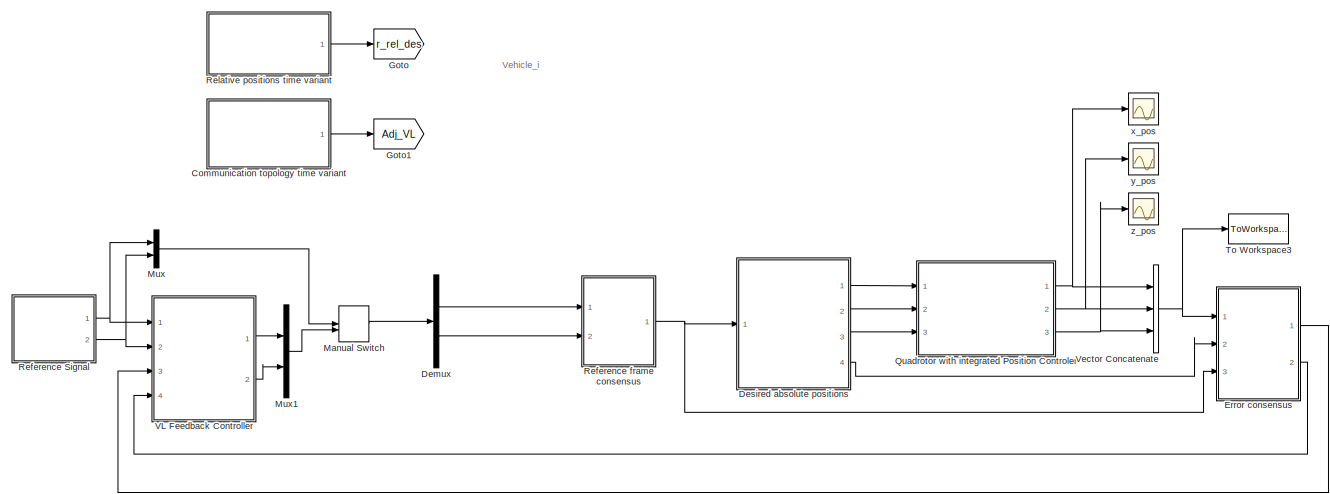
[diagram: root canvas - part 1/2, most of the canvas]
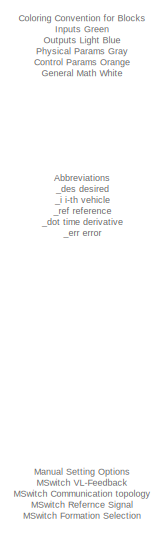
[diagram: root canvas - part 2/2, left side, full height]
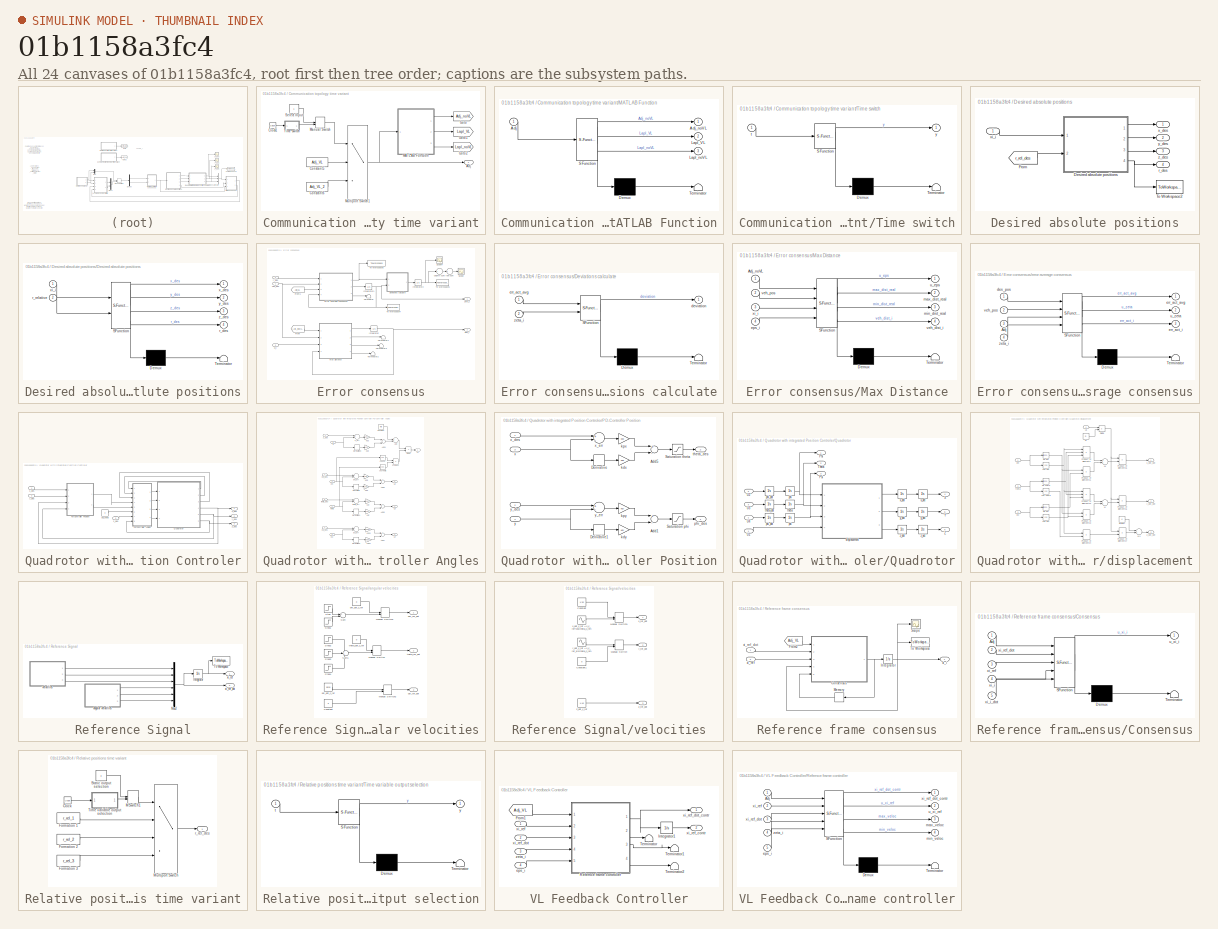
[diagram: thumbnail index - all 24 canvases of the model, root first then tree order]
MODEL slx_01b1158a3fc4
KIND model
CONFIG AbsTol = auto
CONFIG FixedStep = 0.01
CONFIG MaxStep = 0.01
CONFIG MinStep = auto
CONFIG RelTol = 1e-3
CONFIG SampleTimeConstraint = Unconstrained
CONFIG Solver = ode45
CONFIG SolverMode = Auto
CONFIG SolverName = ode45
CONFIG StartTime = 0.0
CONFIG StopTime = 100
BLOCK [SubSystem] Communication topology time variant
  Ports = [0, 1]
  RequestExecContextInheritance = off
  Variant = off
BLOCK [Outport] Communication topology time variant/Adj
  IconDisplay = Port number
BLOCK [Clock] Communication topology time variant/Clock1
BLOCK [Constant] Communication topology time variant/Constant5
  Value = Adj_VL
BLOCK [Constant] Communication topology time variant/Constant6
  Value = Adj_VL_2
BLOCK [Goto] Communication topology time variant/Goto
  GotoTag = Adj_noVL
  TagVisibility = global
BLOCK [Goto] Communication topology time variant/Goto1
  GotoTag = Lapl_VL
  TagVisibility = global
BLOCK [Goto] Communication topology time variant/Goto2
  GotoTag = Lapl_noVL
  TagVisibility = global
BLOCK [SubSystem] Communication topology time variant/MATLAB Function
  ErrorFcn = Stateflow.Translate.translate
  PermitHierarchicalResolution = ExplicitOnly
  Ports = [1, 3]
  RequestExecContextInheritance = off
  SFBlockType = MATLAB Function
  TreatAsAtomicUnit = on
  Variant = off
BLOCK [Demux] Communication topology time variant/MATLAB Function/ Demux 
  Outputs = 1
  Ports = [1, 1]
BLOCK [S-Function] Communication topology time variant/MATLAB Function/ SFunction 
  EnableBusSupport = on
  FunctionName = sf_sfun
  PortCounts = [1 4]
  Ports = [1, 4]
  SFunctionDeploymentMode = off
  Tag = Stateflow S-Function simulation 9
BLOCK [Terminator] Communication topology time variant/MATLAB Function/ Terminator 
BLOCK [Inport] Communication topology time variant/MATLAB Function/Adj
  IconDisplay = Port number
BLOCK [Outport] Communication topology time variant/MATLAB Function/Adj_noVL
  IconDisplay = Port number
BLOCK [Outport] Communication topology time variant/MATLAB Function/Lapl_VL
  IconDisplay = Port number
  Port = 2
BLOCK [Outport] Communication topology time variant/MATLAB Function/Lapl_noVL
  IconDisplay = Port number
  Port = 3
BLOCK [ManualSwitch] Communication topology time variant/Manual Switch
BLOCK [MultiPortSwitch] Communication topology time variant/Multiport Switch1
  InputSameDT = off
  Inputs = 2
  Ports = [3, 1]
  SaturateOnIntegerOverflow = off
BLOCK [Constant] Communication topology time variant/Select Input
BLOCK [SubSystem] Communication topology time variant/Time switch
  ErrorFcn = Stateflow.Translate.translate
  PermitHierarchicalResolution = ExplicitOnly
  Ports = [1, 1]
  RequestExecContextInheritance = off
  SFBlockType = MATLAB Function
  TreatAsAtomicUnit = on
  Variant = off
BLOCK [Demux] Communication topology time variant/Time switch/ Demux 
  Outputs = 1
  Ports = [1, 1]
BLOCK [S-Function] Communication topology time variant/Time switch/ SFunction 
  EnableBusSupport = on
  FunctionName = sf_sfun
  PortCounts = [1 2]
  Ports = [1, 2]
  SFunctionDeploymentMode = off
  Tag = Stateflow S-Function simulation 1
BLOCK [Terminator] Communication topology time variant/Time switch/ Terminator 
BLOCK [Inport] Communication topology time variant/Time switch/t
  IconDisplay = Port number
BLOCK [Outport] Communication topology time variant/Time switch/y
  IconDisplay = Port number
BLOCK [Demux] Demux
  DisplayOption = bar
  Outputs = 2
  Ports = [1, 2]
BLOCK [SubSystem] Desired absolute positions
  Ports = [1, 4]
  RequestExecContextInheritance = off
  Variant = off
BLOCK [SubSystem] Desired absolute positions/Desired absolute positions
  ErrorFcn = Stateflow.Translate.translate
  PermitHierarchicalResolution = ExplicitOnly
  Ports = [2, 4]
  RequestExecContextInheritance = off
  SFBlockType = MATLAB Function
  TreatAsAtomicUnit = on
  Variant = off
BLOCK [Demux] Desired absolute positions/Desired absolute positions/ Demux 
  Outputs = 1
  Ports = [1, 1]
BLOCK [S-Function] Desired absolute positions/Desired absolute positions/ SFunction 
  EnableBusSupport = on
  FunctionName = sf_sfun
  PortCounts = [2 5]
  Ports = [2, 5]
  SFunctionDeploymentMode = off
  Tag = Stateflow S-Function simulation 4
BLOCK [Terminator] Desired absolute positions/Desired absolute positions/ Terminator 
BLOCK [Outport] Desired absolute positions/Desired absolute positions/r_des
  IconDisplay = Port number
  Port = 4
BLOCK [Inport] Desired absolute positions/Desired absolute positions/r_relative
  IconDisplay = Port number
  Port = 2
BLOCK [Outport] Desired absolute positions/Desired absolute positions/x_des
  IconDisplay = Port number
BLOCK [Inport] Desired absolute positions/Desired absolute positions/xi_i
  IconDisplay = Port number
BLOCK [Outport] Desired absolute positions/Desired absolute positions/y_des
  IconDisplay = Port number
  Port = 2
BLOCK [Outport] Desired absolute positions/Desired absolute positions/z_des
  IconDisplay = Port number
  Port = 3
BLOCK [From] Desired absolute positions/From
  GotoTag = r_rel_des
  TagVisibility = global
BLOCK [ToWorkspace] Desired absolute positions/To Workspace2
  FixptAsFi = on
  MaxDataPoints = inf
  Ports = [1]
  SampleTime = -1
  Save2DSignal = 3-D array (concatenate along third dimension)
  SaveFormat = Timeseries
  VariableName = des_pos
BLOCK [Outport] Desired absolute positions/r_des
  IconDisplay = Port number
  Port = 4
BLOCK [Outport] Desired absolute positions/x_des
  IconDisplay = Port number
BLOCK [Inport] Desired absolute positions/xi_i
  IconDisplay = Port number
BLOCK [Outport] Desired absolute positions/y_des
  IconDisplay = Port number
  Port = 2
BLOCK [Outport] Desired absolute positions/z_des
  IconDisplay = Port number
  Port = 3
BLOCK [SubSystem] Error consensus
  Ports = [3, 2]
  RequestExecContextInheritance = off
  Variant = off
BLOCK [SubSystem] Error consensus/Deviations calculate
  ErrorFcn = Stateflow.Translate.translate
  PermitHierarchicalResolution = ExplicitOnly
  Ports = [2, 1]
  RequestExecContextInheritance = off
  SFBlockType = MATLAB Function
  TreatAsAtomicUnit = on
  Variant = off
BLOCK [Demux] Error consensus/Deviations calculate/ Demux 
  Outputs = 1
  Ports = [1, 1]
BLOCK [S-Function] Error consensus/Deviations calculate/ SFunction 
  EnableBusSupport = on
  FunctionName = sf_sfun
  PortCounts = [2 2]
  Ports = [2, 2]
  SFunctionDeploymentMode = off
  Tag = Stateflow S-Function simulation 7
BLOCK [Terminator] Error consensus/Deviations calculate/ Terminator 
BLOCK [Outport] Error consensus/Deviations calculate/deviation
  IconDisplay = Port number
BLOCK [Inport] Error consensus/Deviations calculate/err_act_avg
  IconDisplay = Port number
BLOCK [Inport] Error consensus/Deviations calculate/zeta_i
  IconDisplay = Port number
  Port = 2
BLOCK [From] Error consensus/From
  GotoTag = Adj_noVL
  TagVisibility = global
BLOCK [From] Error consensus/From1
  GotoTag = Adj_VL
  TagVisibility = global
BLOCK [Integrator] Error consensus/Integrator
  Ports = [1, 1]
BLOCK [Integrator] Error consensus/Integrator1
  Ports = [1, 1]
BLOCK [Integrator] Error consensus/Integrator2
  Ports = [1, 1]
BLOCK [SubSystem] Error consensus/Max Distance
  ErrorFcn = Stateflow.Translate.translate
  PermitHierarchicalResolution = ExplicitOnly
  Ports = [4, 4]
  RequestExecContextInheritance = off
  SFBlockType = MATLAB Function
  TreatAsAtomicUnit = on
  Variant = off
BLOCK [Demux] Error consensus/Max Distance/ Demux 
  Outputs = 1
  Ports = [1, 1]
BLOCK [S-Function] Error consensus/Max Distance/ SFunction 
  EnableBusSupport = on
  FunctionName = sf_sfun
  PortCounts = [4 5]
  Ports = [4, 5]
  SFunctionDeploymentMode = off
  Tag = Stateflow S-Function simulation 5
BLOCK [Terminator] Error consensus/Max Distance/ Terminator 
BLOCK [Inport] Error consensus/Max Distance/Adj_noVL
  IconDisplay = Port number
BLOCK [Inport] Error consensus/Max Distance/eps_i
  IconDisplay = Port number
  Port = 4
BLOCK [Outport] Error consensus/Max Distance/max_dist_real
  IconDisplay = Port number
  Port = 2
BLOCK [Outport] Error consensus/Max Distance/min_dist_real
  IconDisplay = Port number
  Port = 3
BLOCK [Outport] Error consensus/Max Distance/u_eps
  IconDisplay = Port number
BLOCK [Outport] Error consensus/Max Distance/veh_dist_i
  IconDisplay = Port number
  Port = 4
BLOCK [Inport] Error consensus/Max Distance/veh_pos
  IconDisplay = Port number
  Port = 2
BLOCK [Inport] Error consensus/Max Distance/xi_i
  IconDisplay = Port number
  Port = 3
BLOCK [Scope] Error consensus/Scope
  Ports = [1]
  ScopeSpecificationString = Simulink.scopes.TimeScopeBlockCfg('CurrentConfiguration', extmgr.ConfigurationSet(extmgr.Configuration('Core','General UI',true),extmgr.Configuration('Core','Source UI',true),extmgr.Configuration('Sources','WiredSimulink',true,'DataLoggingVariableName','ScopeData1'),extmgr.Configuration('Visuals','Time Domain',true,'SerializedDisplays',{struct('MinYLimReal','-6992.85907','MaxYLimReal','62935.7316'...<+1443ch>
BLOCK [Scope] Error consensus/Scope4
  Ports = [1]
  ScopeSpecificationString = Simulink.scopes.TimeScopeBlockCfg('CurrentConfiguration', extmgr.ConfigurationSet(extmgr.Configuration('Core','General UI',true),extmgr.Configuration('Core','Source UI',true),extmgr.Configuration('Sources','WiredSimulink',true,'DataLoggingVariableName','ScopeData4'),extmgr.Configuration('Visuals','Time Domain',true,'SerializedDisplays',{struct('MinYLimReal','-30.16941','MaxYLimReal','54.41269','YL...<+1910ch>
BLOCK [Terminator] Error consensus/Terminator
BLOCK [Terminator] Error consensus/Terminator1
BLOCK [Terminator] Error consensus/Terminator2
BLOCK [Terminator] Error consensus/Terminator3
BLOCK [ToWorkspace] Error consensus/To Workspace1
  FixptAsFi = on
  MaxDataPoints = 1
  Ports = [1]
  SampleTime = -1
  Save2DSignal = 3-D array (concatenate along third dimension)
  VariableName = guete
BLOCK [ToWorkspace] Error consensus/To Workspace4
  FixptAsFi = on
  MaxDataPoints = inf
  Ports = [1]
  SampleTime = -1
  Save2DSignal = 3-D array (concatenate along third dimension)
  SaveFormat = Timeseries
  VariableName = error_i_pos
BLOCK [ToWorkspace] Error consensus/To Workspace5
  FixptAsFi = on
  MaxDataPoints = inf
  Ports = [1]
  SampleTime = -1
  Save2DSignal = 3-D array (concatenate along third dimension)
  SaveFormat = Timeseries
  VariableName = error_true_avg
BLOCK [Sum] Error consensus/column sum
  InputSameDT = off
  Inputs = +
  OutDataTypeStr = Inherit: Inherit via internal rule
  Ports = [1, 1]
  SaturateOnIntegerOverflow = off
BLOCK [Outport] Error consensus/eps_i
  IconDisplay = Port number
  Port = 2
BLOCK [SubSystem] Error consensus/error average consensus
  ErrorFcn = Stateflow.Translate.translate
  PermitHierarchicalResolution = ExplicitOnly
  Ports = [4, 3]
  RequestExecContextInheritance = off
  SFBlockType = MATLAB Function
  TreatAsAtomicUnit = on
  Variant = off
BLOCK [Demux] Error consensus/error average consensus/ Demux 
  Outputs = 1
  Ports = [1, 1]
BLOCK [S-Function] Error consensus/error average consensus/ SFunction 
  EnableBusSupport = on
  FunctionName = sf_sfun
  PortCounts = [4 4]
  Ports = [4, 4]
  SFunctionDeploymentMode = off
  Tag = Stateflow S-Function simulation 6
BLOCK [Terminator] Error consensus/error average consensus/ Terminator 
BLOCK [Inport] Error consensus/error average consensus/Adj
  IconDisplay = Port number
  Port = 3
BLOCK [Inport] Error consensus/error average consensus/des_pos
  IconDisplay = Port number
BLOCK [Outport] Error consensus/error average consensus/err_act_avg
  IconDisplay = Port number
BLOCK [Outport] Error consensus/error average consensus/err_act_i
  IconDisplay = Port number
  Port = 3
BLOCK [Outport] Error consensus/error average consensus/u_zeta
  IconDisplay = Port number
  Port = 2
BLOCK [Inport] Error consensus/error average consensus/veh_pos
  IconDisplay = Port number
  Port = 2
BLOCK [Inport] Error consensus/error average consensus/zeta_i
  IconDisplay = Port number
  Port = 4
BLOCK [Inport] Error consensus/r_des
  IconDisplay = Port number
  Port = 2
BLOCK [Sum] Error consensus/row sum
  InputSameDT = off
  Inputs = +
  OutDataTypeStr = Inherit: Inherit via internal rule
  Ports = [1, 1]
  SaturateOnIntegerOverflow = off
BLOCK [Inport] Error consensus/veh_pos
  IconDisplay = Port number
BLOCK [Inport] Error consensus/xi_i
  IconDisplay = Port number
  Port = 3
BLOCK [Outport] Error consensus/zeta_i
  IconDisplay = Port number
BLOCK [Goto] Goto
  GotoTag = r_rel_des
  TagVisibility = global
BLOCK [Goto] Goto1
  GotoTag = Adj_VL
  TagVisibility = global
BLOCK [ManualSwitch] Manual Switch
BLOCK [Mux] Mux
  DisplayOption = bar
  Inputs = 2
  Ports = [2, 1]
BLOCK [Mux] Mux1
  DisplayOption = bar
  Inputs = 2
  Ports = [2, 1]
BLOCK [SubSystem] Quadrotor with integrated Position Controler
  Ports = [3, 3]
  RequestExecContextInheritance = off
  Variant = off
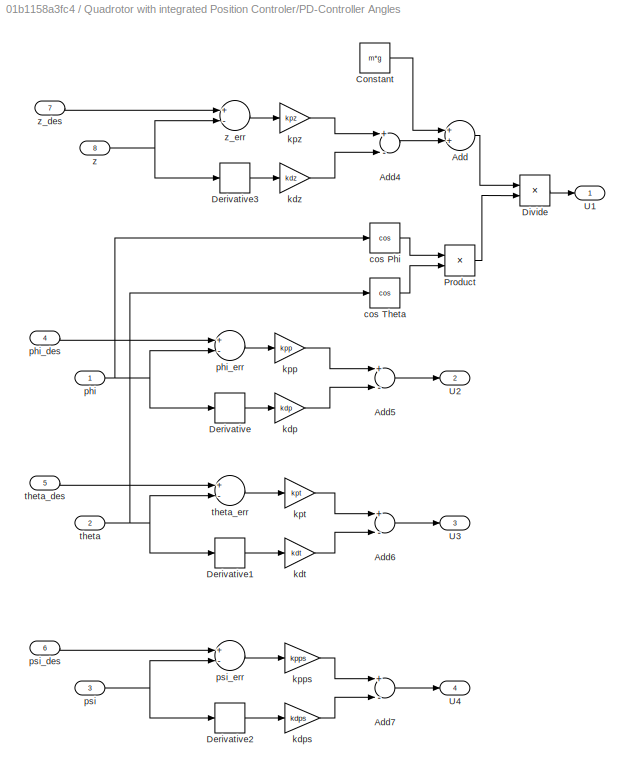
BLOCK [SubSystem] Quadrotor with integrated Position Controler/PD-Controller Angles
  Ports = [8, 4]
  RequestExecContextInheritance = off
  Variant = off
BLOCK [Sum] Quadrotor with integrated Position Controler/PD-Controller Angles/Add
  InputSameDT = off
  OutDataTypeStr = Inherit: Inherit via internal rule
  Ports = [2, 1]
  SaturateOnIntegerOverflow = off
BLOCK [Sum] Quadrotor with integrated Position Controler/PD-Controller Angles/Add4
  InputSameDT = off
  Inputs = +-
  OutDataTypeStr = Inherit: Inherit via internal rule
  Ports = [2, 1]
  SaturateOnIntegerOverflow = off
BLOCK [Sum] Quadrotor with integrated Position Controler/PD-Controller Angles/Add5
  InputSameDT = off
  Inputs = +-
  OutDataTypeStr = Inherit: Inherit via internal rule
  Ports = [2, 1]
  SaturateOnIntegerOverflow = off
BLOCK [Sum] Quadrotor with integrated Position Controler/PD-Controller Angles/Add6
  InputSameDT = off
  Inputs = +-
  OutDataTypeStr = Inherit: Inherit via internal rule
  Ports = [2, 1]
  SaturateOnIntegerOverflow = off
BLOCK [Sum] Quadrotor with integrated Position Controler/PD-Controller Angles/Add7
  InputSameDT = off
  Inputs = +-
  OutDataTypeStr = Inherit: Inherit via internal rule
  Ports = [2, 1]
  SaturateOnIntegerOverflow = off
BLOCK [Constant] Quadrotor with integrated Position Controler/PD-Controller Angles/Constant
  Value = m*g
BLOCK [Derivative] Quadrotor with integrated Position Controler/PD-Controller Angles/Derivative
BLOCK [Derivative] Quadrotor with integrated Position Controler/PD-Controller Angles/Derivative1
BLOCK [Derivative] Quadrotor with integrated Position Controler/PD-Controller Angles/Derivative2
BLOCK [Derivative] Quadrotor with integrated Position Controler/PD-Controller Angles/Derivative3
BLOCK [Product] Quadrotor with integrated Position Controler/PD-Controller Angles/Divide
  InputSameDT = off
  Inputs = */
  OutDataTypeStr = Inherit: Inherit via internal rule
  Ports = [2, 1]
  RndMeth = Floor
  SaturateOnIntegerOverflow = off
BLOCK [Product] Quadrotor with integrated Position Controler/PD-Controller Angles/Product
  InputSameDT = off
  OutDataTypeStr = Inherit: Inherit via internal rule
  Ports = [2, 1]
  SaturateOnIntegerOverflow = off
BLOCK [Outport] Quadrotor with integrated Position Controler/PD-Controller Angles/U1
  IconDisplay = Port number
BLOCK [Outport] Quadrotor with integrated Position Controler/PD-Controller Angles/U2
  IconDisplay = Port number
  Port = 2
BLOCK [Outport] Quadrotor with integrated Position Controler/PD-Controller Angles/U3
  IconDisplay = Port number
  Port = 3
BLOCK [Outport] Quadrotor with integrated Position Controler/PD-Controller Angles/U4
  IconDisplay = Port number
  Port = 4
BLOCK [Trigonometry] Quadrotor with integrated Position Controler/PD-Controller Angles/cos Phi
  Operator = cos
  Ports = [1, 1]
BLOCK [Trigonometry] Quadrotor with integrated Position Controler/PD-Controller Angles/cos Theta
  Operator = cos
  Ports = [1, 1]
BLOCK [Gain] Quadrotor with integrated Position Controler/PD-Controller Angles/kdp
  Gain = kdp
  OutDataTypeStr = Inherit: Inherit via internal rule
  ParamDataTypeStr = Inherit: Inherit via internal rule
  SaturateOnIntegerOverflow = off
BLOCK [Gain] Quadrotor with integrated Position Controler/PD-Controller Angles/kdps
  Gain = kdps
  OutDataTypeStr = Inherit: Inherit via internal rule
  ParamDataTypeStr = Inherit: Inherit via internal rule
  SaturateOnIntegerOverflow = off
BLOCK [Gain] Quadrotor with integrated Position Controler/PD-Controller Angles/kdt
  Gain = kdt
  OutDataTypeStr = Inherit: Inherit via internal rule
  ParamDataTypeStr = Inherit: Inherit via internal rule
  SaturateOnIntegerOverflow = off
BLOCK [Gain] Quadrotor with integrated Position Controler/PD-Controller Angles/kdz
  Gain = kdz
  OutDataTypeStr = Inherit: Inherit via internal rule
  ParamDataTypeStr = Inherit: Inherit via internal rule
  SaturateOnIntegerOverflow = off
BLOCK [Gain] Quadrotor with integrated Position Controler/PD-Controller Angles/kpp
  Gain = kpp
  OutDataTypeStr = Inherit: Inherit via internal rule
  ParamDataTypeStr = Inherit: Inherit via internal rule
  SaturateOnIntegerOverflow = off
BLOCK [Gain] Quadrotor with integrated Position Controler/PD-Controller Angles/kpps
  Gain = kpps
  OutDataTypeStr = Inherit: Inherit via internal rule
  ParamDataTypeStr = Inherit: Inherit via internal rule
  SaturateOnIntegerOverflow = off
BLOCK [Gain] Quadrotor with integrated Position Controler/PD-Controller Angles/kpt
  Gain = kpt
  OutDataTypeStr = Inherit: Inherit via internal rule
  ParamDataTypeStr = Inherit: Inherit via internal rule
  SaturateOnIntegerOverflow = off
BLOCK [Gain] Quadrotor with integrated Position Controler/PD-Controller Angles/kpz
  Gain = kpz
  OutDataTypeStr = Inherit: Inherit via internal rule
  ParamDataTypeStr = Inherit: Inherit via internal rule
  SaturateOnIntegerOverflow = off
BLOCK [Inport] Quadrotor with integrated Position Controler/PD-Controller Angles/phi
  IconDisplay = Port number
BLOCK [Inport] Quadrotor with integrated Position Controler/PD-Controller Angles/phi_des
  IconDisplay = Port number
  Port = 4
BLOCK [Sum] Quadrotor with integrated Position Controler/PD-Controller Angles/phi_err
  InputSameDT = off
  Inputs = +-
  OutDataTypeStr = Inherit: Inherit via internal rule
  Ports = [2, 1]
  SaturateOnIntegerOverflow = off
BLOCK [Inport] Quadrotor with integrated Position Controler/PD-Controller Angles/psi
  IconDisplay = Port number
  Port = 3
BLOCK [Inport] Quadrotor with integrated Position Controler/PD-Controller Angles/psi_des
  IconDisplay = Port number
  Port = 6
BLOCK [Sum] Quadrotor with integrated Position Controler/PD-Controller Angles/psi_err
  InputSameDT = off
  Inputs = +-
  OutDataTypeStr = Inherit: Inherit via internal rule
  Ports = [2, 1]
  SaturateOnIntegerOverflow = off
BLOCK [Inport] Quadrotor with integrated Position Controler/PD-Controller Angles/theta
  IconDisplay = Port number
  Port = 2
BLOCK [Inport] Quadrotor with integrated Position Controler/PD-Controller Angles/theta_des
  IconDisplay = Port number
  Port = 5
BLOCK [Sum] Quadrotor with integrated Position Controler/PD-Controller Angles/theta_err
  InputSameDT = off
  Inputs = +-
  OutDataTypeStr = Inherit: Inherit via internal rule
  Ports = [2, 1]
  SaturateOnIntegerOverflow = off
BLOCK [Inport] Quadrotor with integrated Position Controler/PD-Controller Angles/z
  IconDisplay = Port number
  Port = 8
BLOCK [Inport] Quadrotor with integrated Position Controler/PD-Controller Angles/z_des
  IconDisplay = Port number
  Port = 7
BLOCK [Sum] Quadrotor with integrated Position Controler/PD-Controller Angles/z_err
  InputSameDT = off
  Inputs = +-
  OutDataTypeStr = Inherit: Inherit via internal rule
  Ports = [2, 1]
  SaturateOnIntegerOverflow = off
BLOCK [SubSystem] Quadrotor with integrated Position Controler/PD-Controller Position
  Ports = [4, 2]
  RequestExecContextInheritance = off
  Variant = off
BLOCK [Sum] Quadrotor with integrated Position Controler/PD-Controller Position/Add1
  InputSameDT = off
  Inputs = +-
  OutDataTypeStr = Inherit: Inherit via internal rule
  Ports = [2, 1]
  SaturateOnIntegerOverflow = off
BLOCK [Sum] Quadrotor with integrated Position Controler/PD-Controller Position/Add5
  InputSameDT = off
  Inputs = +-
  OutDataTypeStr = Inherit: Inherit via internal rule
  Ports = [2, 1]
  SaturateOnIntegerOverflow = off
BLOCK [Derivative] Quadrotor with integrated Position Controler/PD-Controller Position/Derivative
BLOCK [Derivative] Quadrotor with integrated Position Controler/PD-Controller Position/Derivative1
BLOCK [Saturate] Quadrotor with integrated Position Controler/PD-Controller Position/Saturation phi
  InputPortMap = u0
  LowerLimit = -0.05
  Ports = [1, 1]
  UpperLimit = 0.05
  ZeroCross = off
BLOCK [Saturate] Quadrotor with integrated Position Controler/PD-Controller Position/Saturation theta
  InputPortMap = u0
  LowerLimit = -0.05
  Ports = [1, 1]
  UpperLimit = 0.05
  ZeroCross = off
BLOCK [Gain] Quadrotor with integrated Position Controler/PD-Controller Position/kdx
  Gain = kdx
  OutDataTypeStr = Inherit: Inherit via internal rule
  ParamDataTypeStr = Inherit: Inherit via internal rule
  SaturateOnIntegerOverflow = off
BLOCK [Gain] Quadrotor with integrated Position Controler/PD-Controller Position/kdy
  Gain = kdy
  OutDataTypeStr = Inherit: Inherit via internal rule
  ParamDataTypeStr = Inherit: Inherit via internal rule
  SaturateOnIntegerOverflow = off
BLOCK [Gain] Quadrotor with integrated Position Controler/PD-Controller Position/kpx
  Gain = kpx
  OutDataTypeStr = Inherit: Inherit via internal rule
  ParamDataTypeStr = Inherit: Inherit via internal rule
  SaturateOnIntegerOverflow = off
BLOCK [Gain] Quadrotor with integrated Position Controler/PD-Controller Position/kpy
  Gain = kpy
  OutDataTypeStr = Inherit: Inherit via internal rule
  ParamDataTypeStr = Inherit: Inherit via internal rule
  SaturateOnIntegerOverflow = off
BLOCK [Outport] Quadrotor with integrated Position Controler/PD-Controller Position/phi_des
  IconDisplay = Port number
BLOCK [Outport] Quadrotor with integrated Position Controler/PD-Controller Position/theta_des
  IconDisplay = Port number
  Port = 2
BLOCK [Inport] Quadrotor with integrated Position Controler/PD-Controller Position/x
  IconDisplay = Port number
  Port = 3
BLOCK [Inport] Quadrotor with integrated Position Controler/PD-Controller Position/x_des
  IconDisplay = Port number
BLOCK [Sum] Quadrotor with integrated Position Controler/PD-Controller Position/x_err
  InputSameDT = off
  Inputs = +-
  OutDataTypeStr = Inherit: Inherit via internal rule
  Ports = [2, 1]
  SaturateOnIntegerOverflow = off
BLOCK [Inport] Quadrotor with integrated Position Controler/PD-Controller Position/y
  IconDisplay = Port number
  Port = 4
BLOCK [Inport] Quadrotor with integrated Position Controler/PD-Controller Position/y_des
  IconDisplay = Port number
  Port = 2
BLOCK [Sum] Quadrotor with integrated Position Controler/PD-Controller Position/y_err
  InputSameDT = off
  Inputs = +-
  OutDataTypeStr = Inherit: Inherit via internal rule
  Ports = [2, 1]
  SaturateOnIntegerOverflow = off
BLOCK [SubSystem] Quadrotor with integrated Position Controler/Quadrotor
  Ports = [4, 6]
  RequestExecContextInheritance = off
  Variant = off
BLOCK [Outport] Quadrotor with integrated Position Controler/Quadrotor/Phi
  IconDisplay = Port number
BLOCK [Outport] Quadrotor with integrated Position Controler/Quadrotor/Psi
  IconDisplay = Port number
  Port = 3
BLOCK [Outport] Quadrotor with integrated Position Controler/Quadrotor/Theta
  IconDisplay = Port number
  Port = 2
BLOCK [Inport] Quadrotor with integrated Position Controler/Quadrotor/U1
  IconDisplay = Port number
BLOCK [Inport] Quadrotor with integrated Position Controler/Quadrotor/U2
  IconDisplay = Port number
  Port = 2
BLOCK [Inport] Quadrotor with integrated Position Controler/Quadrotor/U3
  IconDisplay = Port number
  Port = 3
BLOCK [Inport] Quadrotor with integrated Position Controler/Quadrotor/U4
  IconDisplay = Port number
  Port = 4
BLOCK [Outport] Quadrotor with integrated Position Controler/Quadrotor/X
  IconDisplay = Port number
  Port = 4
BLOCK [Outport] Quadrotor with integrated Position Controler/Quadrotor/Y
  IconDisplay = Port number
  Port = 5
BLOCK [Outport] Quadrotor with integrated Position Controler/Quadrotor/Z
  IconDisplay = Port number
  Port = 6
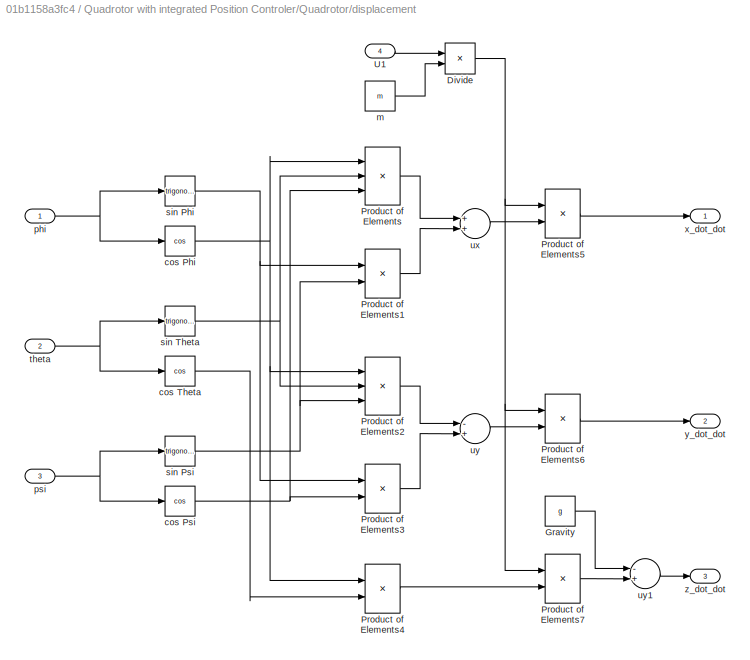
BLOCK [SubSystem] Quadrotor with integrated Position Controler/Quadrotor/displacement
  Ports = [4, 3]
  RequestExecContextInheritance = off
  Variant = off
BLOCK [Product] Quadrotor with integrated Position Controler/Quadrotor/displacement/Divide
  InputSameDT = off
  Inputs = */
  OutDataTypeStr = Inherit: Inherit via internal rule
  Ports = [2, 1]
  RndMeth = Floor
  SaturateOnIntegerOverflow = off
BLOCK [Constant] Quadrotor with integrated Position Controler/Quadrotor/displacement/Gravity
  Value = g
BLOCK [Product] Quadrotor with integrated Position Controler/Quadrotor/displacement/Product of Elements
  InputSameDT = off
  Inputs = 3
  OutDataTypeStr = Inherit: Inherit via internal rule
  Ports = [3, 1]
  RndMeth = Floor
  SaturateOnIntegerOverflow = off
BLOCK [Product] Quadrotor with integrated Position Controler/Quadrotor/displacement/Product of Elements1
  InputSameDT = off
  OutDataTypeStr = Inherit: Inherit via internal rule
  Ports = [2, 1]
  RndMeth = Floor
  SaturateOnIntegerOverflow = off
BLOCK [Product] Quadrotor with integrated Position Controler/Quadrotor/displacement/Product of Elements2
  InputSameDT = off
  Inputs = 3
  OutDataTypeStr = Inherit: Inherit via internal rule
  Ports = [3, 1]
  RndMeth = Floor
  SaturateOnIntegerOverflow = off
BLOCK [Product] Quadrotor with integrated Position Controler/Quadrotor/displacement/Product of Elements3
  InputSameDT = off
  OutDataTypeStr = Inherit: Inherit via internal rule
  Ports = [2, 1]
  RndMeth = Floor
  SaturateOnIntegerOverflow = off
BLOCK [Product] Quadrotor with integrated Position Controler/Quadrotor/displacement/Product of Elements4
  InputSameDT = off
  OutDataTypeStr = Inherit: Inherit via internal rule
  Ports = [2, 1]
  RndMeth = Floor
  SaturateOnIntegerOverflow = off
BLOCK [Product] Quadrotor with integrated Position Controler/Quadrotor/displacement/Product of Elements5
  InputSameDT = off
  OutDataTypeStr = Inherit: Inherit via internal rule
  Ports = [2, 1]
  RndMeth = Floor
  SaturateOnIntegerOverflow = off
BLOCK [Product] Quadrotor with integrated Position Controler/Quadrotor/displacement/Product of Elements6
  InputSameDT = off
  OutDataTypeStr = Inherit: Inherit via internal rule
  Ports = [2, 1]
  RndMeth = Floor
  SaturateOnIntegerOverflow = off
BLOCK [Product] Quadrotor with integrated Position Controler/Quadrotor/displacement/Product of Elements7
  InputSameDT = off
  OutDataTypeStr = Inherit: Inherit via internal rule
  Ports = [2, 1]
  RndMeth = Floor
  SaturateOnIntegerOverflow = off
BLOCK [Inport] Quadrotor with integrated Position Controler/Quadrotor/displacement/U1
  IconDisplay = Port number
  Port = 4
BLOCK [Trigonometry] Quadrotor with integrated Position Controler/Quadrotor/displacement/cos Phi
  Operator = cos
  Ports = [1, 1]
BLOCK [Trigonometry] Quadrotor with integrated Position Controler/Quadrotor/displacement/cos Psi
  Operator = cos
  Ports = [1, 1]
BLOCK [Trigonometry] Quadrotor with integrated Position Controler/Quadrotor/displacement/cos Theta
  Operator = cos
  Ports = [1, 1]
BLOCK [Constant] Quadrotor with integrated Position Controler/Quadrotor/displacement/m
  Value = m
BLOCK [Inport] Quadrotor with integrated Position Controler/Quadrotor/displacement/phi
  IconDisplay = Port number
BLOCK [Inport] Quadrotor with integrated Position Controler/Quadrotor/displacement/psi
  IconDisplay = Port number
  Port = 3
BLOCK [Trigonometry] Quadrotor with integrated Position Controler/Quadrotor/displacement/sin Phi
  Ports = [1, 1]
BLOCK [Trigonometry] Quadrotor with integrated Position Controler/Quadrotor/displacement/sin Psi
  Ports = [1, 1]
BLOCK [Trigonometry] Quadrotor with integrated Position Controler/Quadrotor/displacement/sin Theta
  Ports = [1, 1]
BLOCK [Inport] Quadrotor with integrated Position Controler/Quadrotor/displacement/theta
  IconDisplay = Port number
  Port = 2
BLOCK [Sum] Quadrotor with integrated Position Controler/Quadrotor/displacement/ux
  InputSameDT = off
  OutDataTypeStr = Inherit: Inherit via internal rule
  Ports = [2, 1]
  SaturateOnIntegerOverflow = off
BLOCK [Sum] Quadrotor with integrated Position Controler/Quadrotor/displacement/uy
  InputSameDT = off
  Inputs = -+
  OutDataTypeStr = Inherit: Inherit via internal rule
  Ports = [2, 1]
  SaturateOnIntegerOverflow = off
BLOCK [Sum] Quadrotor with integrated Position Controler/Quadrotor/displacement/uy1
  InputSameDT = off
  Inputs = -+
  OutDataTypeStr = Inherit: Inherit via internal rule
  Ports = [2, 1]
  SaturateOnIntegerOverflow = off
BLOCK [Outport] Quadrotor with integrated Position Controler/Quadrotor/displacement/x_dot_dot
  IconDisplay = Port number
BLOCK [Outport] Quadrotor with integrated Position Controler/Quadrotor/displacement/y_dot_dot
  IconDisplay = Port number
  Port = 2
BLOCK [Outport] Quadrotor with integrated Position Controler/Quadrotor/displacement/z_dot_dot
  IconDisplay = Port number
  Port = 3
BLOCK [Integrator] Quadrotor with integrated Position Controler/Quadrotor/phi
  Ports = [1, 1]
  ZeroCross = off
BLOCK [Integrator] Quadrotor with integrated Position Controler/Quadrotor/phi_dot
  Ports = [1, 1]
BLOCK [Integrator] Quadrotor with integrated Position Controler/Quadrotor/psi
  Ports = [1, 1]
  ZeroCross = off
BLOCK [Integrator] Quadrotor with integrated Position Controler/Quadrotor/psi_dot
  Ports = [1, 1]
  ZeroCross = off
BLOCK [Integrator] Quadrotor with integrated Position Controler/Quadrotor/theta
  Ports = [1, 1]
  ZeroCross = off
BLOCK [Integrator] Quadrotor with integrated Position Controler/Quadrotor/theta_dot
  Ports = [1, 1]
  ZeroCross = off
BLOCK [Integrator] Quadrotor with integrated Position Controler/Quadrotor/x_act
  Ports = [1, 1]
BLOCK [Integrator] Quadrotor with integrated Position Controler/Quadrotor/x_dot
  Ports = [1, 1]
BLOCK [Integrator] Quadrotor with integrated Position Controler/Quadrotor/y_act
  Ports = [1, 1]
BLOCK [Integrator] Quadrotor with integrated Position Controler/Quadrotor/y_dot
  Ports = [1, 1]
BLOCK [Integrator] Quadrotor with integrated Position Controler/Quadrotor/z_act
  Ports = [1, 1]
BLOCK [Integrator] Quadrotor with integrated Position Controler/Quadrotor/z_dot
  Ports = [1, 1]
BLOCK [Constant] Quadrotor with integrated Position Controler/psi_fixed
  Value = 0
BLOCK [Inport] Quadrotor with integrated Position Controler/x_des
  IconDisplay = Port number
BLOCK [Outport] Quadrotor with integrated Position Controler/x_pos
  IconDisplay = Port number
BLOCK [Inport] Quadrotor with integrated Position Controler/y_des
  IconDisplay = Port number
  Port = 2
BLOCK [Outport] Quadrotor with integrated Position Controler/y_pos
  IconDisplay = Port number
  Port = 2
BLOCK [Inport] Quadrotor with integrated Position Controler/z_des
  IconDisplay = Port number
  Port = 3
BLOCK [Outport] Quadrotor with integrated Position Controler/z_pos
  IconDisplay = Port number
  Port = 3
BLOCK [SubSystem] Reference Signal
  Ports = [0, 2]
  RequestExecContextInheritance = off
  Variant = off
BLOCK [Integrator] Reference Signal/Integrator
  InitialCondition = [0;0;0;0;0;0]
  Ports = [1, 1]
BLOCK [Mux] Reference Signal/Mux2
  DisplayOption = bar
  Inputs = 6
  Ports = [6, 1]
BLOCK [ToWorkspace] Reference Signal/To Workspace
  FixptAsFi = on
  MaxDataPoints = inf
  Ports = [1]
  SampleTime = -1
  Save2DSignal = 3-D array (concatenate along third dimension)
  SaveFormat = Timeseries
  VariableName = xi_ref
BLOCK [SubSystem] Reference Signal/angular velocities
  Ports = [0, 3]
  RequestExecContextInheritance = off
  Variant = off
BLOCK [Constant] Reference Signal/angular velocities/Constant
  Value = 0
BLOCK [ManualSwitch] Reference Signal/angular velocities/Manual Switch
BLOCK [ManualSwitch] Reference Signal/angular velocities/Manual Switch1
  CurrentSetting = 0
BLOCK [ManualSwitch] Reference Signal/angular velocities/Manual Switch2
  CurrentSetting = 0
BLOCK [Step] Reference Signal/angular velocities/Step
  After = pi/10
  SampleTime = 0
  Time = 20
BLOCK [Step] Reference Signal/angular velocities/Step1
  After = pi/10
  SampleTime = 0
  Time = 40
BLOCK [Step] Reference Signal/angular velocities/Step2
  After = pi/30
  SampleTime = 0
  Time = 10
BLOCK [Step] Reference Signal/angular velocities/Step3
  After = pi/30*2
  SampleTime = 0
  Time = 15
BLOCK [Step] Reference Signal/angular velocities/Step4
  After = pi/30
  SampleTime = 0
  Time = 20
BLOCK [Sum] Reference Signal/angular velocities/Sum
  IconShape = round
  InputSameDT = off
  Inputs = +-
  OutDataTypeStr = Inherit: Inherit via internal rule
  Ports = [2, 1]
  SaturateOnIntegerOverflow = off
BLOCK [Sum] Reference Signal/angular velocities/Sum1
  IconShape = round
  InputSameDT = off
  Inputs = +-+
  OutDataTypeStr = Inherit: Inherit via internal rule
  Ports = [3, 1]
  SaturateOnIntegerOverflow = off
BLOCK [Constant] Reference Signal/angular velocities/phi_dot_c_ref
  Value = 0
BLOCK [Outport] Reference Signal/angular velocities/phi_ref_dot
  IconDisplay = Port number
BLOCK [Constant] Reference Signal/angular velocities/psi_dot_c_ref
  Value = pi/50
BLOCK [Outport] Reference Signal/angular velocities/psi_ref_dot
  IconDisplay = Port number
  Port = 3
BLOCK [Constant] Reference Signal/angular velocities/theta_dot_c_ref
  Value = 0
BLOCK [Outport] Reference Signal/angular velocities/theta_ref_dot
  IconDisplay = Port number
  Port = 2
BLOCK [SubSystem] Reference Signal/velocities
  Ports = [0, 3]
  RequestExecContextInheritance = off
  Variant = off
BLOCK [Constant] Reference Signal/velocities/Constant
  Value = 1/30
BLOCK [Constant] Reference Signal/velocities/Constant1
  Value = 0
BLOCK [ManualSwitch] Reference Signal/velocities/Manual Switch
  CurrentSetting = 0
BLOCK [ManualSwitch] Reference Signal/velocities/Manual Switch1
BLOCK [Sin] Reference Signal/velocities/x_dot_c_ref = v_c_ref*cos(theta_c_ref)
  Amplitude = 9*pi/500
  Frequency = pi/50
  Phase = pi/2
  Ports = [0, 1]
  SampleTime = 0
BLOCK [Outport] Reference Signal/velocities/x_ref_dot
  IconDisplay = Port number
BLOCK [Sin] Reference Signal/velocities/y_dot_c_ref = v_c_ref_sin(thete_c_ref)
  Amplitude = 9*pi/500
  Frequency = pi/50
  Ports = [0, 1]
  SampleTime = 0
BLOCK [Outport] Reference Signal/velocities/y_ref_dot
  IconDisplay = Port number
  Port = 2
BLOCK [Constant] Reference Signal/velocities/z_dot_c_ref
  Value = 1/40
BLOCK [Outport] Reference Signal/velocities/z_ref_dot
  IconDisplay = Port number
  Port = 3
BLOCK [Outport] Reference Signal/xi_ref
  IconDisplay = Port number
BLOCK [Outport] Reference Signal/xi_ref_dot
  IconDisplay = Port number
  Port = 2
BLOCK [SubSystem] Reference frame consensus
  Ports = [2, 1]
  RequestExecContextInheritance = off
  Variant = off
BLOCK [SubSystem] Reference frame consensus/Consensus
  ErrorFcn = Stateflow.Translate.translate
  MinAlgLoopOccurrences = on
  PermitHierarchicalResolution = ExplicitOnly
  Ports = [5, 1]
  RequestExecContextInheritance = off
  SFBlockType = MATLAB Function
  TreatAsAtomicUnit = on
  Variant = off
BLOCK [Demux] Reference frame consensus/Consensus/ Demux 
  Outputs = 1
  Ports = [1, 1]
BLOCK [S-Function] Reference frame consensus/Consensus/ SFunction 
  EnableBusSupport = on
  FunctionName = sf_sfun
  PortCounts = [5 2]
  Ports = [5, 2]
  SFunctionDeploymentMode = off
  Tag = Stateflow S-Function simulation 2
BLOCK [Terminator] Reference frame consensus/Consensus/ Terminator 
BLOCK [Inport] Reference frame consensus/Consensus/Adj
  IconDisplay = Port number
BLOCK [Outport] Reference frame consensus/Consensus/u_xi_i
  IconDisplay = Port number
BLOCK [Inport] Reference frame consensus/Consensus/xi_i
  IconDisplay = Port number
  Port = 4
BLOCK [Inport] Reference frame consensus/Consensus/xi_i_dot
  IconDisplay = Port number
  Port = 5
BLOCK [Inport] Reference frame consensus/Consensus/xi_ref
  IconDisplay = Port number
  Port = 3
BLOCK [Inport] Reference frame consensus/Consensus/xi_ref_dot
  IconDisplay = Port number
  Port = 2
BLOCK [From] Reference frame consensus/From2
  GotoTag = Adj_VL
  TagVisibility = global
BLOCK [Integrator] Reference frame consensus/Integrator
  InitialCondition = xi_init
  Ports = [1, 1]
BLOCK [Memory] Reference frame consensus/Memory
BLOCK [Scope] Reference frame consensus/Scope
  Ports = [1]
  ScopeSpecificationString = C++SS(StrPVP('SaveName','ScopeData1'),StrPVP('LimitDataPoints','on'),StrPVP('DataFormat','Array'),StrPVP('Decimation','1'),StrPVP('BlockParamSampleInput','off'))
BLOCK [ToWorkspace] Reference frame consensus/To Workspace
  FixptAsFi = on
  MaxDataPoints = inf
  Ports = [1]
  SampleTime = -1
  Save2DSignal = 3-D array (concatenate along third dimension)
  SaveFormat = Timeseries
  VariableName = xi_i
BLOCK [Outport] Reference frame consensus/xi_i
  IconDisplay = Port number
BLOCK [Inport] Reference frame consensus/xi_ref
  IconDisplay = Port number
  Port = 2
BLOCK [Inport] Reference frame consensus/xi_ref_dot
  IconDisplay = Port number
BLOCK [SubSystem] Relative positions time variant
  Ports = [0, 1]
  RequestExecContextInheritance = off
  Variant = off
BLOCK [Clock] Relative positions time variant/Clock
BLOCK [Constant] Relative positions time variant/Formation 1
  Value = r_rel_1
BLOCK [Constant] Relative positions time variant/Formation 2
  Value = r_rel_2
BLOCK [Constant] Relative positions time variant/Formation 3
  Value = r_rel_3
BLOCK [ManualSwitch] Relative positions time variant/MSwitch1
BLOCK [MultiPortSwitch] Relative positions time variant/Multiport Switch
  InputSameDT = off
  Ports = [4, 1]
  SaturateOnIntegerOverflow = off
BLOCK [Constant] Relative positions time variant/Static output selection
  Value = 3
BLOCK [SubSystem] Relative positions time variant/Time variable output selection
  ErrorFcn = Stateflow.Translate.translate
  PermitHierarchicalResolution = ExplicitOnly
  Ports = [1, 1]
  RequestExecContextInheritance = off
  SFBlockType = MATLAB Function
  TreatAsAtomicUnit = on
  Variant = off
BLOCK [Demux] Relative positions time variant/Time variable output selection/ Demux 
  Outputs = 1
  Ports = [1, 1]
BLOCK [S-Function] Relative positions time variant/Time variable output selection/ SFunction 
  EnableBusSupport = on
  FunctionName = sf_sfun
  PortCounts = [1 2]
  Ports = [1, 2]
  SFunctionDeploymentMode = off
  Tag = Stateflow S-Function simulation 3
BLOCK [Terminator] Relative positions time variant/Time variable output selection/ Terminator 
BLOCK [Inport] Relative positions time variant/Time variable output selection/t
  IconDisplay = Port number
BLOCK [Outport] Relative positions time variant/Time variable output selection/y
  IconDisplay = Port number
BLOCK [Outport] Relative positions time variant/r_rel_des
  IconDisplay = Port number
BLOCK [ToWorkspace] To Workspace3
  FixptAsFi = on
  MaxDataPoints = inf
  Ports = [1]
  SampleTime = -1
  Save2DSignal = 3-D array (concatenate along third dimension)
  SaveFormat = Timeseries
  VariableName = vehicle_pos
BLOCK [SubSystem] VL Feedback Controller
  Ports = [4, 2]
  RequestExecContextInheritance = off
  Variant = off
BLOCK [From] VL Feedback Controller/From1
  GotoTag = Adj_VL
  TagVisibility = global
BLOCK [Integrator] VL Feedback Controller/Integrator1
  Ports = [1, 1]
BLOCK [SubSystem] VL Feedback Controller/Refernce frame controller
  ErrorFcn = Stateflow.Translate.translate
  PermitHierarchicalResolution = ExplicitOnly
  Ports = [5, 4]
  RequestExecContextInheritance = off
  SFBlockType = MATLAB Function
  TreatAsAtomicUnit = on
  Variant = off
BLOCK [Demux] VL Feedback Controller/Refernce frame controller/ Demux 
  Outputs = 1
  Ports = [1, 1]
BLOCK [S-Function] VL Feedback Controller/Refernce frame controller/ SFunction 
  EnableBusSupport = on
  FunctionName = sf_sfun
  PortCounts = [5 5]
  Ports = [5, 5]
  SFunctionDeploymentMode = off
  Tag = Stateflow S-Function simulation 8
BLOCK [Terminator] VL Feedback Controller/Refernce frame controller/ Terminator 
BLOCK [Inport] VL Feedback Controller/Refernce frame controller/Adj
  IconDisplay = Port number
BLOCK [Inport] VL Feedback Controller/Refernce frame controller/eps_i
  IconDisplay = Port number
  Port = 5
BLOCK [Outport] VL Feedback Controller/Refernce frame controller/max_veloc
  IconDisplay = Port number
  Port = 3
BLOCK [Outport] VL Feedback Controller/Refernce frame controller/min_veloc
  IconDisplay = Port number
  Port = 4
BLOCK [Outport] VL Feedback Controller/Refernce frame controller/u_xi_ref
  IconDisplay = Port number
  Port = 2
BLOCK [Inport] VL Feedback Controller/Refernce frame controller/xi_ref
  IconDisplay = Port number
  Port = 2
BLOCK [Inport] VL Feedback Controller/Refernce frame controller/xi_ref_dot
  IconDisplay = Port number
  Port = 3
BLOCK [Outport] VL Feedback Controller/Refernce frame controller/xi_ref_dot_contr
  IconDisplay = Port number
BLOCK [Inport] VL Feedback Controller/Refernce frame controller/zeta_i
  IconDisplay = Port number
  Port = 4
BLOCK [Terminator] VL Feedback Controller/Terminator
BLOCK [Terminator] VL Feedback Controller/Terminator1
BLOCK [Terminator] VL Feedback Controller/Terminator2
BLOCK [Inport] VL Feedback Controller/eps_i
  IconDisplay = Port number
  Port = 4
BLOCK [Inport] VL Feedback Controller/xi_ref
  IconDisplay = Port number
BLOCK [Outport] VL Feedback Controller/xi_ref_contr
  IconDisplay = Port number
  Port = 2
BLOCK [Inport] VL Feedback Controller/xi_ref_dot
  IconDisplay = Port number
  Port = 2
BLOCK [Outport] VL Feedback Controller/xi_ref_dot_contr
  IconDisplay = Port number
BLOCK [Inport] VL Feedback Controller/zeta_i
  IconDisplay = Port number
  Port = 3
BLOCK [Concatenate] Vector Concatenate
  Mode = Multidimensional array
  NumInputs = 3
  Ports = [3, 1]
BLOCK [Scope] x_pos
  Ports = [1]
  ScopeSpecificationString = Simulink.scopes.TimeScopeBlockCfg('CurrentConfiguration', extmgr.ConfigurationSet(extmgr.Configuration('Core','General UI',true),extmgr.Configuration('Core','Source UI',true),extmgr.Configuration('Sources','WiredSimulink',true,'DataLoggingVariableName','ScopeData3','DataLoggingSaveFormat','StructureWithTime','DataLoggingDecimation','1','DataLoggingDecimateData',true),extmgr.Configuration('Visuals'...<+1763ch>
BLOCK [Scope] y_pos
  Ports = [1]
  ScopeSpecificationString = Simulink.scopes.TimeScopeBlockCfg('CurrentConfiguration', extmgr.ConfigurationSet(extmgr.Configuration('Core','General UI',true),extmgr.Configuration('Core','Source UI',true),extmgr.Configuration('Sources','WiredSimulink',true,'DataLoggingVariableName','ScopeData5','DataLoggingSaveFormat','StructureWithTime','DataLoggingLimitDataPoints',true,'DataLoggingDecimation','1','DataLoggingDecimateData',tr...<+1797ch>
BLOCK [Scope] z_pos
  Ports = [1]
  ScopeSpecificationString = Simulink.scopes.TimeScopeBlockCfg('CurrentConfiguration', extmgr.ConfigurationSet(extmgr.Configuration('Core','General UI',true),extmgr.Configuration('Core','Source UI',true),extmgr.Configuration('Sources','WiredSimulink',true,'DataLoggingVariableName','ScopeData4','DataLoggingSaveFormat','StructureWithTime','DataLoggingDecimation','1','DataLoggingDecimateData',true),extmgr.Configuration('Visuals'...<+1763ch>
ANNOTATION (root): Abbreviations _des desired _i i-th vehicle _ref reference _dot time derivative _err error _pos position _act actual _contr controlled veh vehicle Adj Adjacency matrix Lapl Laplacian matrix x x-position y y-position z z-position xi reference frame VL Virtual Leader r [x y z] - position _rel relative in virtual frame
ANNOTATION (root): Coloring Convention for Blocks Inputs Green Outputs Light Blue Physical Params Gray Control Params Orange General Math White Subsystems White Integrators White Goto / From Yellow
ANNOTATION (root): Manual Setting Options MSwitch VL-Feedback MSwitch Communication topology MSwitch Refernce Signal MSwitch Formation Selection
ANNOTATION (root): Vehicle_i
LINE Communication topology time variant/Clock1:1 -> Communication topology time variant/Time switch:1
LINE Communication topology time variant/Constant5:1 -> Communication topology time variant/Multiport Switch1:2
LINE Communication topology time variant/Constant6:1 -> Communication topology time variant/Multiport Switch1:3
LINE Communication topology time variant/MATLAB Function:1 -> Communication topology time variant/Goto:1
LINE Communication topology time variant/MATLAB Function:2 -> Communication topology time variant/Goto1:1
LINE Communication topology time variant/MATLAB Function:3 -> Communication topology time variant/Goto2:1
LINE Communication topology time variant/Manual Switch:1 -> Communication topology time variant/Multiport Switch1:1
NET Communication topology time variant/Multiport Switch1:1 -> Communication topology time variant/Adj:1, Communication topology time variant/MATLAB Function:1
LINE Communication topology time variant/Select Input:1 -> Communication topology time variant/Manual Switch:1
LINE Communication topology time variant/Time switch:1 -> Communication topology time variant/Manual Switch:2
LINE Communication topology time variant:1 -> Goto1:1
LINE Demux:1 -> Reference frame consensus:1
LINE Demux:2 -> Reference frame consensus:2
LINE Desired absolute positions/Desired absolute positions:1 -> Desired absolute positions/x_des:1
LINE Desired absolute positions/Desired absolute positions:2 -> Desired absolute positions/y_des:1
LINE Desired absolute positions/Desired absolute positions:3 -> Desired absolute positions/z_des:1
NET Desired absolute positions/Desired absolute positions:4 -> Desired absolute positions/To Workspace2:1, Desired absolute positions/r_des:1
LINE Desired absolute positions/From:1 -> Desired absolute positions/Desired absolute positions:2
LINE Desired absolute positions/xi_i:1 -> Desired absolute positions/Desired absolute positions:1
LINE Desired absolute positions:1 -> Quadrotor with integrated Position Controler:1
LINE Desired absolute positions:2 -> Quadrotor with integrated Position Controler:2
LINE Desired absolute positions:3 -> Quadrotor with integrated Position Controler:3
LINE Desired absolute positions:4 -> Error consensus:2
LINE Error consensus/Deviations calculate:1 -> Error consensus/Integrator2:1
LINE Error consensus/From1:1 -> Error consensus/error average consensus:3
LINE Error consensus/From:1 -> Error consensus/Max Distance:1
NET Error consensus/Integrator1:1 -> Error consensus/Deviations calculate:2, Error consensus/To Workspace4:1, Error consensus/error average consensus:4, Error consensus/zeta_i:1
NET Error consensus/Integrator2:1 -> Error consensus/Scope4:1, Error consensus/To Workspace1:1, Error consensus/column sum:1
NET Error consensus/Integrator:1 -> Error consensus/Max Distance:4, Error consensus/eps_i:1
LINE Error consensus/Max Distance:1 -> Error consensus/Integrator:1
LINE Error consensus/Max Distance:2 -> Error consensus/Terminator1:1
LINE Error consensus/Max Distance:3 -> Error consensus/Terminator3:1
LINE Error consensus/Max Distance:4 -> Error consensus/Terminator2:1
LINE Error consensus/column sum:1 -> Error consensus/row sum:1
NET Error consensus/error average consensus:1 -> Error consensus/Deviations calculate:1, Error consensus/To Workspace5:1
LINE Error consensus/error average consensus:2 -> Error consensus/Integrator1:1
LINE Error consensus/error average consensus:3 -> Error consensus/Terminator:1
LINE Error consensus/r_des:1 -> Error consensus/error average consensus:1
LINE Error consensus/row sum:1 -> Error consensus/Scope:1
NET Error consensus/veh_pos:1 -> Error consensus/Max Distance:2, Error consensus/error average consensus:2
LINE Error consensus/xi_i:1 -> Error consensus/Max Distance:3
LINE Error consensus:1 -> VL Feedback Controller:3
LINE Error consensus:2 -> VL Feedback Controller:4
LINE Manual Switch:1 -> Demux:1
LINE Mux1:1 -> Manual Switch:2
LINE Mux:1 -> Manual Switch:1
LINE Quadrotor with integrated Position Controler/PD-Controller Angles/Add4:1 -> Quadrotor with integrated Position Controler/PD-Controller Angles/Add:2
LINE Quadrotor with integrated Position Controler/PD-Controller Angles/Add5:1 -> Quadrotor with integrated Position Controler/PD-Controller Angles/U2:1
LINE Quadrotor with integrated Position Controler/PD-Controller Angles/Add6:1 -> Quadrotor with integrated Position Controler/PD-Controller Angles/U3:1
LINE Quadrotor with integrated Position Controler/PD-Controller Angles/Add7:1 -> Quadrotor with integrated Position Controler/PD-Controller Angles/U4:1
LINE Quadrotor with integrated Position Controler/PD-Controller Angles/Add:1 -> Quadrotor with integrated Position Controler/PD-Controller Angles/Divide:1
LINE Quadrotor with integrated Position Controler/PD-Controller Angles/Constant:1 -> Quadrotor with integrated Position Controler/PD-Controller Angles/Add:1
LINE Quadrotor with integrated Position Controler/PD-Controller Angles/Derivative1:1 -> Quadrotor with integrated Position Controler/PD-Controller Angles/kdt:1
LINE Quadrotor with integrated Position Controler/PD-Controller Angles/Derivative2:1 -> Quadrotor with integrated Position Controler/PD-Controller Angles/kdps:1
LINE Quadrotor with integrated Position Controler/PD-Controller Angles/Derivative3:1 -> Quadrotor with integrated Position Controler/PD-Controller Angles/kdz:1
LINE Quadrotor with integrated Position Controler/PD-Controller Angles/Derivative:1 -> Quadrotor with integrated Position Controler/PD-Controller Angles/kdp:1
LINE Quadrotor with integrated Position Controler/PD-Controller Angles/Divide:1 -> Quadrotor with integrated Position Controler/PD-Controller Angles/U1:1
LINE Quadrotor with integrated Position Controler/PD-Controller Angles/Product:1 -> Quadrotor with integrated Position Controler/PD-Controller Angles/Divide:2
LINE Quadrotor with integrated Position Controler/PD-Controller Angles/cos Phi:1 -> Quadrotor with integrated Position Controler/PD-Controller Angles/Product:1
LINE Quadrotor with integrated Position Controler/PD-Controller Angles/cos Theta:1 -> Quadrotor with integrated Position Controler/PD-Controller Angles/Product:2
LINE Quadrotor with integrated Position Controler/PD-Controller Angles/kdp:1 -> Quadrotor with integrated Position Controler/PD-Controller Angles/Add5:2
LINE Quadrotor with integrated Position Controler/PD-Controller Angles/kdps:1 -> Quadrotor with integrated Position Controler/PD-Controller Angles/Add7:2
LINE Quadrotor with integrated Position Controler/PD-Controller Angles/kdt:1 -> Quadrotor with integrated Position Controler/PD-Controller Angles/Add6:2
LINE Quadrotor with integrated Position Controler/PD-Controller Angles/kdz:1 -> Quadrotor with integrated Position Controler/PD-Controller Angles/Add4:2
LINE Quadrotor with integrated Position Controler/PD-Controller Angles/kpp:1 -> Quadrotor with integrated Position Controler/PD-Controller Angles/Add5:1
LINE Quadrotor with integrated Position Controler/PD-Controller Angles/kpps:1 -> Quadrotor with integrated Position Controler/PD-Controller Angles/Add7:1
LINE Quadrotor with integrated Position Controler/PD-Controller Angles/kpt:1 -> Quadrotor with integrated Position Controler/PD-Controller Angles/Add6:1
LINE Quadrotor with integrated Position Controler/PD-Controller Angles/kpz:1 -> Quadrotor with integrated Position Controler/PD-Controller Angles/Add4:1
NET Quadrotor with integrated Position Controler/PD-Controller Angles/phi:1 -> Quadrotor with integrated Position Controler/PD-Controller Angles/Derivative:1, Quadrotor with integrated Position Controler/PD-Controller Angles/cos Phi:1, Quadrotor with integrated Position Controler/PD-Controller Angles/phi_err:2
LINE Quadrotor with integrated Position Controler/PD-Controller Angles/phi_des:1 -> Quadrotor with integrated Position Controler/PD-Controller Angles/phi_err:1
LINE Quadrotor with integrated Position Controler/PD-Controller Angles/phi_err:1 -> Quadrotor with integrated Position Controler/PD-Controller Angles/kpp:1
NET Quadrotor with integrated Position Controler/PD-Controller Angles/psi:1 -> Quadrotor with integrated Position Controler/PD-Controller Angles/Derivative2:1, Quadrotor with integrated Position Controler/PD-Controller Angles/psi_err:2
LINE Quadrotor with integrated Position Controler/PD-Controller Angles/psi_des:1 -> Quadrotor with integrated Position Controler/PD-Controller Angles/psi_err:1
LINE Quadrotor with integrated Position Controler/PD-Controller Angles/psi_err:1 -> Quadrotor with integrated Position Controler/PD-Controller Angles/kpps:1
NET Quadrotor with integrated Position Controler/PD-Controller Angles/theta:1 -> Quadrotor with integrated Position Controler/PD-Controller Angles/Derivative1:1, Quadrotor with integrated Position Controler/PD-Controller Angles/cos Theta:1, Quadrotor with integrated Position Controler/PD-Controller Angles/theta_err:2
LINE Quadrotor with integrated Position Controler/PD-Controller Angles/theta_des:1 -> Quadrotor with integrated Position Controler/PD-Controller Angles/theta_err:1
LINE Quadrotor with integrated Position Controler/PD-Controller Angles/theta_err:1 -> Quadrotor with integrated Position Controler/PD-Controller Angles/kpt:1
NET Quadrotor with integrated Position Controler/PD-Controller Angles/z:1 -> Quadrotor with integrated Position Controler/PD-Controller Angles/Derivative3:1, Quadrotor with integrated Position Controler/PD-Controller Angles/z_err:2
LINE Quadrotor with integrated Position Controler/PD-Controller Angles/z_des:1 -> Quadrotor with integrated Position Controler/PD-Controller Angles/z_err:1
LINE Quadrotor with integrated Position Controler/PD-Controller Angles/z_err:1 -> Quadrotor with integrated Position Controler/PD-Controller Angles/kpz:1
LINE Quadrotor with integrated Position Controler/PD-Controller Angles:1 -> Quadrotor with integrated Position Controler/Quadrotor:1
LINE Quadrotor with integrated Position Controler/PD-Controller Angles:2 -> Quadrotor with integrated Position Controler/Quadrotor:2
LINE Quadrotor with integrated Position Controler/PD-Controller Angles:3 -> Quadrotor with integrated Position Controler/Quadrotor:3
LINE Quadrotor with integrated Position Controler/PD-Controller Angles:4 -> Quadrotor with integrated Position Controler/Quadrotor:4
LINE Quadrotor with integrated Position Controler/PD-Controller Position/Add1:1 -> Quadrotor with integrated Position Controler/PD-Controller Position/Saturation phi:1
LINE Quadrotor with integrated Position Controler/PD-Controller Position/Add5:1 -> Quadrotor with integrated Position Controler/PD-Controller Position/Saturation theta:1
LINE Quadrotor with integrated Position Controler/PD-Controller Position/Derivative1:1 -> Quadrotor with integrated Position Controler/PD-Controller Position/kdy:1
LINE Quadrotor with integrated Position Controler/PD-Controller Position/Derivative:1 -> Quadrotor with integrated Position Controler/PD-Controller Position/kdx:1
LINE Quadrotor with integrated Position Controler/PD-Controller Position/Saturation phi:1 -> Quadrotor with integrated Position Controler/PD-Controller Position/phi_des:1
LINE Quadrotor with integrated Position Controler/PD-Controller Position/Saturation theta:1 -> Quadrotor with integrated Position Controler/PD-Controller Position/theta_des:1
LINE Quadrotor with integrated Position Controler/PD-Controller Position/kdx:1 -> Quadrotor with integrated Position Controler/PD-Controller Position/Add5:2
LINE Quadrotor with integrated Position Controler/PD-Controller Position/kdy:1 -> Quadrotor with integrated Position Controler/PD-Controller Position/Add1:2
LINE Quadrotor with integrated Position Controler/PD-Controller Position/kpx:1 -> Quadrotor with integrated Position Controler/PD-Controller Position/Add5:1
LINE Quadrotor with integrated Position Controler/PD-Controller Position/kpy:1 -> Quadrotor with integrated Position Controler/PD-Controller Position/Add1:1
NET Quadrotor with integrated Position Controler/PD-Controller Position/x:1 -> Quadrotor with integrated Position Controler/PD-Controller Position/Derivative:1, Quadrotor with integrated Position Controler/PD-Controller Position/x_err:2
LINE Quadrotor with integrated Position Controler/PD-Controller Position/x_des:1 -> Quadrotor with integrated Position Controler/PD-Controller Position/x_err:1
LINE Quadrotor with integrated Position Controler/PD-Controller Position/x_err:1 -> Quadrotor with integrated Position Controler/PD-Controller Position/kpx:1
NET Quadrotor with integrated Position Controler/PD-Controller Position/y:1 -> Quadrotor with integrated Position Controler/PD-Controller Position/Derivative1:1, Quadrotor with integrated Position Controler/PD-Controller Position/y_err:2
LINE Quadrotor with integrated Position Controler/PD-Controller Position/y_des:1 -> Quadrotor with integrated Position Controler/PD-Controller Position/y_err:1
LINE Quadrotor with integrated Position Controler/PD-Controller Position/y_err:1 -> Quadrotor with integrated Position Controler/PD-Controller Position/kpy:1
LINE Quadrotor with integrated Position Controler/PD-Controller Position:1 -> Quadrotor with integrated Position Controler/PD-Controller Angles:4
LINE Quadrotor with integrated Position Controler/PD-Controller Position:2 -> Quadrotor with integrated Position Controler/PD-Controller Angles:5
LINE Quadrotor with integrated Position Controler/Quadrotor/U1:1 -> Quadrotor with integrated Position Controler/Quadrotor/displacement:4
LINE Quadrotor with integrated Position Controler/Quadrotor/U2:1 -> Quadrotor with integrated Position Controler/Quadrotor/phi_dot:1
LINE Quadrotor with integrated Position Controler/Quadrotor/U3:1 -> Quadrotor with integrated Position Controler/Quadrotor/theta_dot:1
LINE Quadrotor with integrated Position Controler/Quadrotor/U4:1 -> Quadrotor with integrated Position Controler/Quadrotor/psi_dot:1
NET Quadrotor with integrated Position Controler/Quadrotor/displacement/Divide:1 -> Quadrotor with integrated Position Controler/Quadrotor/displacement/Product of Elements5:1, Quadrotor with integrated Position Controler/Quadrotor/displacement/Product of Elements6:1, Quadrotor with integrated Position Controler/Quadrotor/displacement/Product of Elements7:1
LINE Quadrotor with integrated Position Controler/Quadrotor/displacement/Gravity:1 -> Quadrotor with integrated Position Controler/Quadrotor/displacement/uy1:1
LINE Quadrotor with integrated Position Controler/Quadrotor/displacement/Product of Elements1:1 -> Quadrotor with integrated Position Controler/Quadrotor/displacement/ux:2
LINE Quadrotor with integrated Position Controler/Quadrotor/displacement/Product of Elements2:1 -> Quadrotor with integrated Position Controler/Quadrotor/displacement/uy:1
LINE Quadrotor with integrated Position Controler/Quadrotor/displacement/Product of Elements3:1 -> Quadrotor with integrated Position Controler/Quadrotor/displacement/uy:2
LINE Quadrotor with integrated Position Controler/Quadrotor/displacement/Product of Elements4:1 -> Quadrotor with integrated Position Controler/Quadrotor/displacement/Product of Elements7:2
LINE Quadrotor with integrated Position Controler/Quadrotor/displacement/Product of Elements5:1 -> Quadrotor with integrated Position Controler/Quadrotor/displacement/x_dot_dot:1
LINE Quadrotor with integrated Position Controler/Quadrotor/displacement/Product of Elements6:1 -> Quadrotor with integrated Position Controler/Quadrotor/displacement/y_dot_dot:1
LINE Quadrotor with integrated Position Controler/Quadrotor/displacement/Product of Elements7:1 -> Quadrotor with integrated Position Controler/Quadrotor/displacement/uy1:2
LINE Quadrotor with integrated Position Controler/Quadrotor/displacement/Product of Elements:1 -> Quadrotor with integrated Position Controler/Quadrotor/displacement/ux:1
LINE Quadrotor with integrated Position Controler/Quadrotor/displacement/U1:1 -> Quadrotor with integrated Position Controler/Quadrotor/displacement/Divide:1
NET Quadrotor with integrated Position Controler/Quadrotor/displacement/cos Phi:1 -> Quadrotor with integrated Position Controler/Quadrotor/displacement/Product of Elements2:1, Quadrotor with integrated Position Controler/Quadrotor/displacement/Product of Elements4:1, Quadrotor with integrated Position Controler/Quadrotor/displacement/Product of Elements:1
NET Quadrotor with integrated Position Controler/Quadrotor/displacement/cos Psi:1 -> Quadrotor with integrated Position Controler/Quadrotor/displacement/Product of Elements3:2, Quadrotor with integrated Position Controler/Quadrotor/displacement/Product of Elements:3
LINE Quadrotor with integrated Position Controler/Quadrotor/displacement/cos Theta:1 -> Quadrotor with integrated Position Controler/Quadrotor/displacement/Product of Elements4:2
LINE Quadrotor with integrated Position Controler/Quadrotor/displacement/m:1 -> Quadrotor with integrated Position Controler/Quadrotor/displacement/Divide:2
NET Quadrotor with integrated Position Controler/Quadrotor/displacement/phi:1 -> Quadrotor with integrated Position Controler/Quadrotor/displacement/cos Phi:1, Quadrotor with integrated Position Controler/Quadrotor/displacement/sin Phi:1
NET Quadrotor with integrated Position Controler/Quadrotor/displacement/psi:1 -> Quadrotor with integrated Position Controler/Quadrotor/displacement/cos Psi:1, Quadrotor with integrated Position Controler/Quadrotor/displacement/sin Psi:1
NET Quadrotor with integrated Position Controler/Quadrotor/displacement/sin Phi:1 -> Quadrotor with integrated Position Controler/Quadrotor/displacement/Product of Elements1:1, Quadrotor with integrated Position Controler/Quadrotor/displacement/Product of Elements3:1
NET Quadrotor with integrated Position Controler/Quadrotor/displacement/sin Psi:1 -> Quadrotor with integrated Position Controler/Quadrotor/displacement/Product of Elements1:2, Quadrotor with integrated Position Controler/Quadrotor/displacement/Product of Elements2:3
NET Quadrotor with integrated Position Controler/Quadrotor/displacement/sin Theta:1 -> Quadrotor with integrated Position Controler/Quadrotor/displacement/Product of Elements2:2, Quadrotor with integrated Position Controler/Quadrotor/displacement/Product of Elements:2
NET Quadrotor with integrated Position Controler/Quadrotor/displacement/theta:1 -> Quadrotor with integrated Position Controler/Quadrotor/displacement/cos Theta:1, Quadrotor with integrated Position Controler/Quadrotor/displacement/sin Theta:1
LINE Quadrotor with integrated Position Controler/Quadrotor/displacement/ux:1 -> Quadrotor with integrated Position Controler/Quadrotor/displacement/Product of Elements5:2
LINE Quadrotor with integrated Position Controler/Quadrotor/displacement/uy1:1 -> Quadrotor with integrated Position Controler/Quadrotor/displacement/z_dot_dot:1
LINE Quadrotor with integrated Position Controler/Quadrotor/displacement/uy:1 -> Quadrotor with integrated Position Controler/Quadrotor/displacement/Product of Elements6:2
LINE Quadrotor with integrated Position Controler/Quadrotor/displacement:1 -> Quadrotor with integrated Position Controler/Quadrotor/x_dot:1
LINE Quadrotor with integrated Position Controler/Quadrotor/displacement:2 -> Quadrotor with integrated Position Controler/Quadrotor/y_dot:1
LINE Quadrotor with integrated Position Controler/Quadrotor/displacement:3 -> Quadrotor with integrated Position Controler/Quadrotor/z_dot:1
NET Quadrotor with integrated Position Controler/Quadrotor/phi:1 -> Quadrotor with integrated Position Controler/Quadrotor/Phi:1, Quadrotor with integrated Position Controler/Quadrotor/displacement:1
LINE Quadrotor with integrated Position Controler/Quadrotor/phi_dot:1 -> Quadrotor with integrated Position Controler/Quadrotor/phi:1
NET Quadrotor with integrated Position Controler/Quadrotor/psi:1 -> Quadrotor with integrated Position Controler/Quadrotor/Psi:1, Quadrotor with integrated Position Controler/Quadrotor/displacement:3
LINE Quadrotor with integrated Position Controler/Quadrotor/psi_dot:1 -> Quadrotor with integrated Position Controler/Quadrotor/psi:1
NET Quadrotor with integrated Position Controler/Quadrotor/theta:1 -> Quadrotor with integrated Position Controler/Quadrotor/Theta:1, Quadrotor with integrated Position Controler/Quadrotor/displacement:2
LINE Quadrotor with integrated Position Controler/Quadrotor/theta_dot:1 -> Quadrotor with integrated Position Controler/Quadrotor/theta:1
LINE Quadrotor with integrated Position Controler/Quadrotor/x_act:1 -> Quadrotor with integrated Position Controler/Quadrotor/X:1
LINE Quadrotor with integrated Position Controler/Quadrotor/x_dot:1 -> Quadrotor with integrated Position Controler/Quadrotor/x_act:1
LINE Quadrotor with integrated Position Controler/Quadrotor/y_act:1 -> Quadrotor with integrated Position Controler/Quadrotor/Y:1
LINE Quadrotor with integrated Position Controler/Quadrotor/y_dot:1 -> Quadrotor with integrated Position Controler/Quadrotor/y_act:1
LINE Quadrotor with integrated Position Controler/Quadrotor/z_act:1 -> Quadrotor with integrated Position Controler/Quadrotor/Z:1
LINE Quadrotor with integrated Position Controler/Quadrotor/z_dot:1 -> Quadrotor with integrated Position Controler/Quadrotor/z_act:1
LINE Quadrotor with integrated Position Controler/Quadrotor:1 -> Quadrotor with integrated Position Controler/PD-Controller Angles:1
LINE Quadrotor with integrated Position Controler/Quadrotor:2 -> Quadrotor with integrated Position Controler/PD-Controller Angles:2
LINE Quadrotor with integrated Position Controler/Quadrotor:3 -> Quadrotor with integrated Position Controler/PD-Controller Angles:3
NET Quadrotor with integrated Position Controler/Quadrotor:4 -> Quadrotor with integrated Position Controler/PD-Controller Position:3, Quadrotor with integrated Position Controler/x_pos:1
NET Quadrotor with integrated Position Controler/Quadrotor:5 -> Quadrotor with integrated Position Controler/PD-Controller Position:4, Quadrotor with integrated Position Controler/y_pos:1
NET Quadrotor with integrated Position Controler/Quadrotor:6 -> Quadrotor with integrated Position Controler/PD-Controller Angles:8, Quadrotor with integrated Position Controler/z_pos:1
LINE Quadrotor with integrated Position Controler/psi_fixed:1 -> Quadrotor with integrated Position Controler/PD-Controller Angles:6
LINE Quadrotor with integrated Position Controler/x_des:1 -> Quadrotor with integrated Position Controler/PD-Controller Position:1
LINE Quadrotor with integrated Position Controler/y_des:1 -> Quadrotor with integrated Position Controler/PD-Controller Position:2
LINE Quadrotor with integrated Position Controler/z_des:1 -> Quadrotor with integrated Position Controler/PD-Controller Angles:7
NET Quadrotor with integrated Position Controler:1 -> Vector Concatenate:1, x_pos:1
NET Quadrotor with integrated Position Controler:2 -> Vector Concatenate:2, y_pos:1
NET Quadrotor with integrated Position Controler:3 -> Vector Concatenate:3, z_pos:1
NET Reference Signal/Integrator:1 -> Reference Signal/To Workspace:1, Reference Signal/xi_ref:1
NET Reference Signal/Mux2:1 -> Reference Signal/Integrator:1, Reference Signal/xi_ref_dot:1
LINE Reference Signal/angular velocities/Constant:1 -> Reference Signal/angular velocities/Manual Switch2:2
LINE Reference Signal/angular velocities/Manual Switch1:1 -> Reference Signal/angular velocities/phi_ref_dot:1
LINE Reference Signal/angular velocities/Manual Switch2:1 -> Reference Signal/angular velocities/psi_ref_dot:1
LINE Reference Signal/angular velocities/Manual Switch:1 -> Reference Signal/angular velocities/theta_ref_dot:1
LINE Reference Signal/angular velocities/Step1:1 -> Reference Signal/angular velocities/Sum:2
LINE Reference Signal/angular velocities/Step2:1 -> Reference Signal/angular velocities/Sum1:1
LINE Reference Signal/angular velocities/Step3:1 -> Reference Signal/angular velocities/Sum1:2
LINE Reference Signal/angular velocities/Step4:1 -> Reference Signal/angular velocities/Sum1:3
LINE Reference Signal/angular velocities/Step:1 -> Reference Signal/angular velocities/Sum:1
LINE Reference Signal/angular velocities/Sum1:1 -> Reference Signal/angular velocities/Manual Switch:2
LINE Reference Signal/angular velocities/Sum:1 -> Reference Signal/angular velocities/Manual Switch1:2
LINE Reference Signal/angular velocities/phi_dot_c_ref:1 -> Reference Signal/angular velocities/Manual Switch1:1
LINE Reference Signal/angular velocities/psi_dot_c_ref:1 -> Reference Signal/angular velocities/Manual Switch2:1
LINE Reference Signal/angular velocities/theta_dot_c_ref:1 -> Reference Signal/angular velocities/Manual Switch:1
LINE Reference Signal/angular velocities:1 -> Reference Signal/Mux2:4
LINE Reference Signal/angular velocities:2 -> Reference Signal/Mux2:5
LINE Reference Signal/angular velocities:3 -> Reference Signal/Mux2:6
LINE Reference Signal/velocities/Constant1:1 -> Reference Signal/velocities/Manual Switch:2
LINE Reference Signal/velocities/Constant:1 -> Reference Signal/velocities/Manual Switch1:1
LINE Reference Signal/velocities/Manual Switch1:1 -> Reference Signal/velocities/x_ref_dot:1
LINE Reference Signal/velocities/Manual Switch:1 -> Reference Signal/velocities/y_ref_dot:1
LINE Reference Signal/velocities/x_dot_c_ref = v_c_ref*cos(theta_c_ref):1 -> Reference Signal/velocities/Manual Switch1:2
LINE Reference Signal/velocities/y_dot_c_ref = v_c_ref_sin(thete_c_ref):1 -> Reference Signal/velocities/Manual Switch:1
LINE Reference Signal/velocities/z_dot_c_ref:1 -> Reference Signal/velocities/z_ref_dot:1
LINE Reference Signal/velocities:1 -> Reference Signal/Mux2:1
LINE Reference Signal/velocities:2 -> Reference Signal/Mux2:2
LINE Reference Signal/velocities:3 -> Reference Signal/Mux2:3
NET Reference Signal:1 -> Mux:1, VL Feedback Controller:1
NET Reference Signal:2 -> Mux:2, VL Feedback Controller:2
NET Reference frame consensus/Consensus:1 -> Reference frame consensus/Integrator:1, Reference frame consensus/Memory:1
LINE Reference frame consensus/From2:1 -> Reference frame consensus/Consensus:1
NET Reference frame consensus/Integrator:1 -> Reference frame consensus/Consensus:4, Reference frame consensus/Scope:1, Reference frame consensus/To Workspace:1, Reference frame consensus/xi_i:1
LINE Reference frame consensus/Memory:1 -> Reference frame consensus/Consensus:5
LINE Reference frame consensus/xi_ref:1 -> Reference frame consensus/Consensus:3
LINE Reference frame consensus/xi_ref_dot:1 -> Reference frame consensus/Consensus:2
NET Reference frame consensus:1 -> Desired absolute positions:1, Error consensus:3
LINE Relative positions time variant/Clock:1 -> Relative positions time variant/Time variable output selection:1
LINE Relative positions time variant/Formation 1:1 -> Relative positions time variant/Multiport Switch:2
LINE Relative positions time variant/Formation 2:1 -> Relative positions time variant/Multiport Switch:3
LINE Relative positions time variant/Formation 3:1 -> Relative positions time variant/Multiport Switch:4
LINE Relative positions time variant/MSwitch1:1 -> Relative positions time variant/Multiport Switch:1
LINE Relative positions time variant/Multiport Switch:1 -> Relative positions time variant/r_rel_des:1
LINE Relative positions time variant/Static output selection:1 -> Relative positions time variant/MSwitch1:1
LINE Relative positions time variant/Time variable output selection:1 -> Relative positions time variant/MSwitch1:2
LINE Relative positions time variant:1 -> Goto:1
LINE VL Feedback Controller/From1:1 -> VL Feedback Controller/Refernce frame controller:1
LINE VL Feedback Controller/Integrator1:1 -> VL Feedback Controller/xi_ref_contr:1
NET VL Feedback Controller/Refernce frame controller:1 -> VL Feedback Controller/Integrator1:1, VL Feedback Controller/xi_ref_dot_contr:1
LINE VL Feedback Controller/Refernce frame controller:2 -> VL Feedback Controller/Terminator:1
LINE VL Feedback Controller/Refernce frame controller:3 -> VL Feedback Controller/Terminator1:1
LINE VL Feedback Controller/Refernce frame controller:4 -> VL Feedback Controller/Terminator2:1
LINE VL Feedback Controller/eps_i:1 -> VL Feedback Controller/Refernce frame controller:5
LINE VL Feedback Controller/xi_ref:1 -> VL Feedback Controller/Refernce frame controller:2
LINE VL Feedback Controller/xi_ref_dot:1 -> VL Feedback Controller/Refernce frame controller:3
LINE VL Feedback Controller/zeta_i:1 -> VL Feedback Controller/Refernce frame controller:4
LINE VL Feedback Controller:1 -> Mux1:1
LINE VL Feedback Controller:2 -> Mux1:2
NET Vector Concatenate:1 -> Error consensus:1, To Workspace3:1
note: NET lines group one-source signal fan-out (src -> all destinations, sorted); 1:1 wires keep LINE
CHART Communication topology time variant/Time switch states=1 transitions=1
  STATE_LABEL 'eML_blk_kernel()'
  STATE_LABEL 'SCRIPT:\nfunction y = time_switch(t)\n%gives time varying output for multiport switch\n\nif (t >= 20 && t < 60)\n    y = 2;\nelse\n    y = 1;\nend\n\n'
CHART Reference frame consensus/Consensus states=1 transitions=1
  STATE_LABEL 'eML_blk_kernel()'
  STATE_LABEL 'SCRIPT:\nfunction u_xi_i = consensus_xi(Adj, xi_ref_dot, xi_ref, xi_i, xi_i_dot)\n%CONSENSUS_XI calculates u_xi = xi_i_dot for all vehicles according to the consensus\n%formula for time-varying reference state (access to the leader only to a subgroup)\n% Inputs:\n%       Adj         - adjacency matrix\n%       xi_ref_dot  - time derivative of the reference xi\n%       xi_ref      - reference xi\n%       x...<+1074ch>'
CHART Relative positions time variant/Time variable output selection states=1 transitions=1
  STATE_LABEL 'eML_blk_kernel()'
  STATE_LABEL 'SCRIPT:\nfunction y = fcn(t)\n%gives time-varying integer output for a multiport switch\n\nif (t < 20)\n    y = 1;\nelseif (t >= 20 && t < 50)\n    y = 2;\nelseif (t >= 50 && t < 100)\n    y = 3;\nelse\n    y = 1;\nend\n\n'
CHART Desired absolute positions/Desired absolute positions states=1 transitions=1
  STATE_LABEL 'eML_blk_kernel()'
  STATE_LABEL 'SCRIPT:\nfunction [x_des,y_des,z_des,r_des]  = desired_pos_abs(xi_i, r_relative)\n%DESIRED_POS_ABS computes the desired absolute positions depending on the\n%reference frame of the vehicle and the relative coordinates of the desired\n%formation (three dimensional coordinate transformation)\n%\n% Inputs:\n%       xi_i    - reference frame of the i-th vehicle\n%       r_relative  - vehicle formation shape i...<+996ch>'
CHART Error consensus/Max Distance states=1 transitions=1
  STATE_LABEL 'eML_blk_kernel()'
  STATE_LABEL 'SCRIPT:\nfunction [u_eps, max_dist_real, min_dist_real, veh_dist_i] = max_distance(Adj_noVL, veh_pos, xi_i, eps_i)\n%MAX_DISTANCE computes a consensus of the maximum distance from virtual\n%center in the network. Using a combination of consensus und own status\n%update into the state epsilon.\n%\n% Inputs:\n%   Ajd_noVl    - Ajacency without the VL\n%   veh_pos     - current vehicles position in a 3xN mat...<+1233ch>'
CHART Error consensus/error average consensus states=1 transitions=1
  STATE_LABEL 'eML_blk_kernel()'
  STATE_LABEL 'SCRIPT:\nfunction [err_act_avg, u_zeta, err_act_i] = consensus_err_calc(des_pos, veh_pos, Adj, zeta_i)\n%CONSENSUS_ERR_CALC computes the each vehicles own average error understanding in the formation\n%it uses his own error as well as consensus to reach a good estimate of the\n%average error in the network\n% \n% Inputs:\n%       des_pos     - desired position for each vehicle\n%       veh_pos     - actua...<+1368ch>'
CHART Error consensus/Deviations calculate states=1 transitions=1
  STATE_LABEL 'eML_blk_kernel()'
  STATE_LABEL 'SCRIPT:\nfunction deviation  = dev_calc(err_act_avg, zeta_i)\n%computes the deviations between the real avg error und error estimate of each vehicle\n%expands the avg error to match the size of the err_i matrix\n% \n% Inputs:\n%       err_act_avg - actual average error in the network\n% Outputs:\n%       zeta_i      - average estimate of each vehicle\n\n% number of vehicles\nN = size(zeta_i,2);\ndeviation = a...<+35ch>'
CHART VL Feedback Controller/Refernce frame controller states=1 transitions=1
  STATE_LABEL 'eML_blk_kernel()'
  STATE_LABEL 'SCRIPT:\nfunction [xi_ref_dot_contr, u_xi_ref, max_veloc, min_veloc]  = xi_ref_contr(Adj, xi_ref, xi_ref_dot, zeta_i, eps_i)\n%XI_REF_CONTR is the controller for the reference frame xi depending on the\n%average error in the network and the maximum distance of a reference\n%frame\n%\n% Inputs:\n%       xi_ref        - reference value of the reference frame\n%       xi_ref_dot    - time derivative of the r...<+1518ch>'
CHART Communication topology time variant/MATLAB Function states=1 transitions=1
  STATE_LABEL 'eML_blk_kernel()'
  STATE_LABEL 'SCRIPT:\nfunction [Adj_noVL, Lapl_VL, Lapl_noVL] = lapl_adj_options(Adj)\n%gives adjacency and laplacian matrix of graph with and without VL\n\n% number of vehicles\nN = size(Adj,1)-1;\n\n% takes away last row and column\nAdj_noVL = Adj(1:N,1:N);\n\n% laplacian calculation after thesis definition\nLapl_VL = zeros(size(Adj));\n\nfor i=1:1:N+1\n    for j=1:1:N+1\n        if (i == j)\n            % sets l(i,j) to th...<+216ch>'
